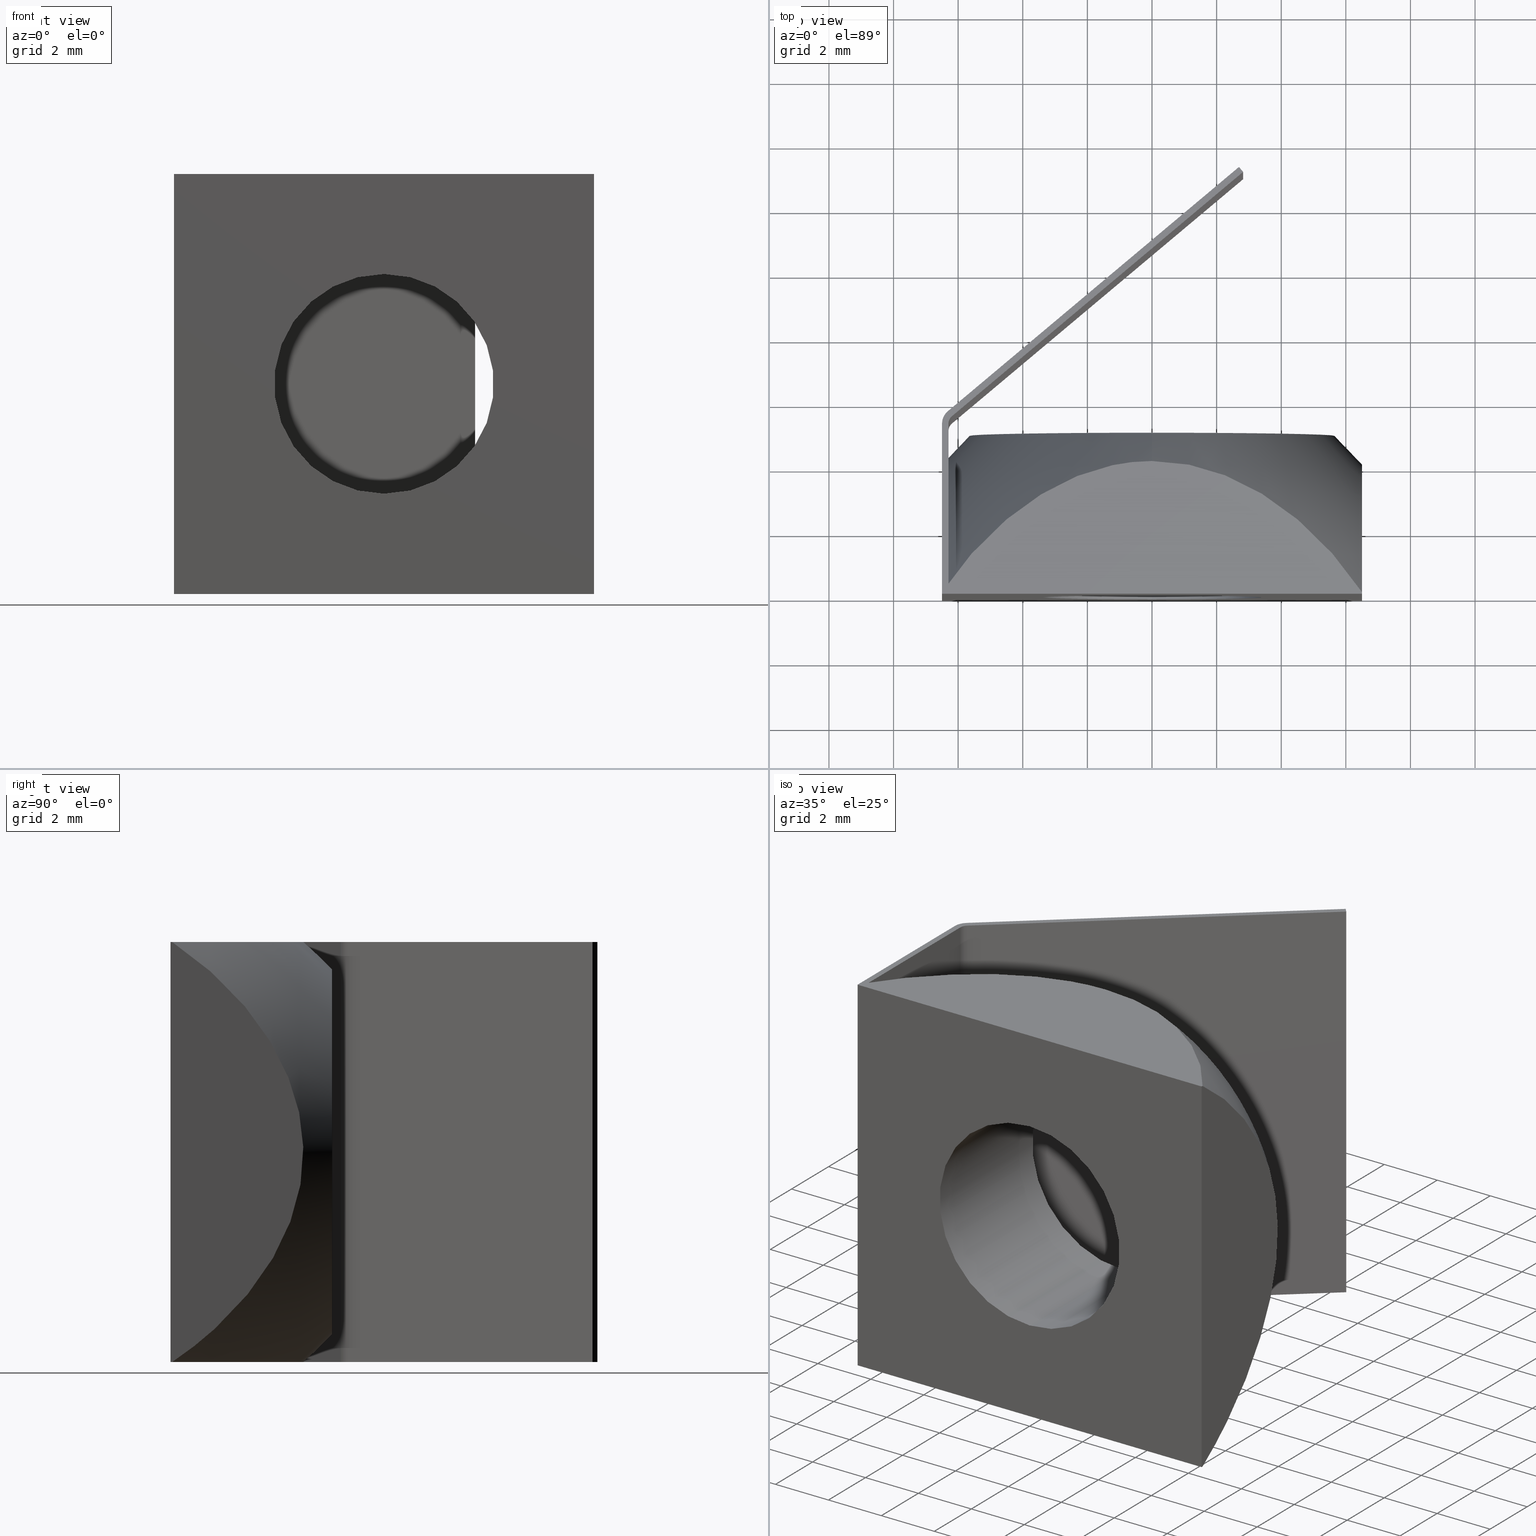
[diagram: canonical four-view strip — front | top / right | iso, engineering-drawing reading convention]
A machine part, canonical four-view strip (front | top / right | iso — engineering-drawing reading convention). The complete STEP part file that produces these views, byte-faithful:
ISO-10303-21;
HEADER;
FILE_DESCRIPTION (( 'STEP AP203' ),
    '1' );
FILE_NAME ('084.302.038.STEP',
    '2012-07-11T06:26:18',
    ( '' ),
    ( '' ),
    'SwSTEP 2.0',
    'SolidWorks 2011',
    '' );
FILE_SCHEMA (( 'CONFIG_CONTROL_DESIGN' ));
ENDSEC;

DATA;
#1 = PRODUCT ( '084.302.038', '084.302.038', '', ( #513 ) ) ;
#2 = EDGE_CURVE ( 'NONE', #271, #209, #282, .T. ) ;
#3 = EDGE_CURVE ( 'NONE', #226, #249, #223, .T. ) ;
#4 = EDGE_CURVE ( 'NONE', #421, #241, #659, .T. ) ;
#5 = EDGE_CURVE ( 'NONE', #312, #768, #111, .T. ) ;
#6 = EDGE_CURVE ( 'NONE', #222, #281, #162, .T. ) ;
#7 = EDGE_CURVE ( 'NONE', #209, #421, #366, .T. ) ;
#8 = EDGE_CURVE ( 'NONE', #229, #421, #443, .T. ) ;
#9 = EDGE_CURVE ( 'NONE', #241, #240, #717, .T. ) ;
#10 = EDGE_CURVE ( 'NONE', #688, #216, #626, .T. ) ;
#11 = EDGE_CURVE ( 'NONE', #491, #218, #500, .T. ) ;
#12 = EDGE_CURVE ( 'NONE', #688, #249, #323, .T. ) ;
#13 = EDGE_CURVE ( 'NONE', #229, #232, #100, .T. ) ;
#14 = EDGE_CURVE ( 'NONE', #483, #672, #165, .T. ) ;
#15 = EDGE_CURVE ( 'NONE', #232, #235, #103, .T. ) ;
#16 = EDGE_CURVE ( 'NONE', #264, #224, #415, .T. ) ;
#17 = EDGE_CURVE ( 'NONE', #281, #768, #743, .T. ) ;
#18 = EDGE_CURVE ( 'NONE', #271, #672, #101, .T. ) ;
#19 = EDGE_CURVE ( 'NONE', #688, #491, #192, .T. ) ;
#20 = EDGE_CURVE ( 'NONE', #597, #483, #153, .T. ) ;
#21 = EDGE_CURVE ( 'NONE', #289, #240, #551, .T. ) ;
#22 = EDGE_CURVE ( 'NONE', #216, #218, #205, .T. ) ;
#23 = EDGE_CURVE ( 'NONE', #222, #312, #615, .T. ) ;
#24 = EDGE_CURVE ( 'NONE', #273, #706, #349, .T. ) ;
#25 = EDGE_CURVE ( 'NONE', #218, #215, #498, .T. ) ;
#26 = EDGE_CURVE ( 'NONE', #768, #312, #163, .T. ) ;
#27 = EDGE_CURVE ( 'NONE', #242, #217, #439, .T. ) ;
#28 = EDGE_CURVE ( 'NONE', #249, #620, #707, .T. ) ;
#29 = EDGE_CURVE ( 'NONE', #218, #217, #557, .T. ) ;
#30 = EDGE_CURVE ( 'NONE', #597, #235, #167, .T. ) ;
#31 = EDGE_CURVE ( 'NONE', #620, #216, #662, .T. ) ;
#32 = EDGE_CURVE ( 'NONE', #224, #242, #337, .T. ) ;
#33 = EDGE_CURVE ( 'NONE', #235, #289, #102, .T. ) ;
#34 = EDGE_CURVE ( 'NONE', #237, #217, #259, .T. ) ;
#35 = EDGE_CURVE ( 'NONE', #620, #215, #188, .T. ) ;
#36 = EDGE_CURVE ( 'NONE', #491, #242, #573, .T. ) ;
#37 = EDGE_CURVE ( 'NONE', #215, #237, #651, .T. ) ;
#38 = EDGE_CURVE ( 'NONE', #483, #597, #193, .T. ) ;
#39 = EDGE_CURVE ( 'NONE', #273, #216, #335, .T. ) ;
#40 = EDGE_CURVE ( 'NONE', #240, #209, #479, .T. ) ;
#41 = EDGE_CURVE ( 'NONE', #232, #241, #213, .T. ) ;
#42 = EDGE_CURVE ( 'NONE', #672, #229, #99, .T. ) ;
#43 = EDGE_CURVE ( 'NONE', #766, #226, #594, .T. ) ;
#44 = EDGE_CURVE ( 'NONE', #249, #264, #173, .T. ) ;
#45 = EDGE_CURVE ( 'NONE', #264, #491, #675, .T. ) ;
#46 = EDGE_CURVE ( 'NONE', #766, #688, #611, .T. ) ;
#47 = EDGE_CURVE ( 'NONE', #281, #222, #155, .T. ) ;
#48 = EDGE_CURVE ( 'NONE', #289, #271, #98, .T. ) ;
#49 = PRODUCT_RELATED_PRODUCT_CATEGORY ( 'detail', '', ( #1 ) ) ;
#50 = MANIFOLD_SOLID_BREP ( 'Base-Flangia1', #112 ) ;
#51 = PRODUCT_DEFINITION_SHAPE ( 'NONE', 'NONE',  #73 ) ;
#52 = DESIGN_CONTEXT ( 'detailed design', #95, 'design' ) ;
#53 = UNCERTAINTY_MEASURE_WITH_UNIT (LENGTH_MEASURE( 1.000000000000000100E-005 ), #300, 'distance_accuracy_value', 'NONE');
#54 = MANIFOLD_SOLID_BREP ( 'Taglia-Rivoluzione2', #108 ) ;
#55 = EDGE_CURVE ( 'NONE', #224, #237, #507, .T. ) ;
#56 = EDGE_CURVE ( 'NONE', #264, #215, #577, .T. ) ;
#57 = ADVANCED_FACE ( 'NONE', ( #637, #450 ), #657, .T. ) ;
#58 = ADVANCED_FACE ( 'NONE', ( #755 ), #320, .T. ) ;
#59 = ADVANCED_FACE ( 'NONE', ( #283 ), #427, .F. ) ;
#60 = ADVANCED_FACE ( 'NONE', ( #746 ), #667, .T. ) ;
#61 = CC_DESIGN_DATE_AND_TIME_ASSIGNMENT ( #674, #471, ( #73 ) ) ;
#62 = ADVANCED_FACE ( 'NONE', ( #469 ), #728, .T. ) ;
#63 = EDGE_CURVE ( 'NONE', #766, #273, #619, .T. ) ;
#64 = ADVANCED_FACE ( 'NONE', ( #733 ), #206, .T. ) ;
#65 = CC_DESIGN_PERSON_AND_ORGANIZATION_ASSIGNMENT ( #501, #640, ( #73 ) ) ;
#66 = ADVANCED_FACE ( 'NONE', ( #506 ), #477, .T. ) ;
#67 = ADVANCED_FACE ( 'NONE', ( #481 ), #644, .F. ) ;
#68 = ADVANCED_FACE ( 'NONE', ( #660 ), #124, .T. ) ;
#69 = APPROVAL ( #759, 'NON SPECIFICATO' ) ;
#70 = ADVANCED_FACE ( 'NONE', ( #690 ), #390, .T. ) ;
#71 = ADVANCED_FACE ( 'NONE', ( #357 ), #778, .F. ) ;
#72 = APPROVAL ( #340, 'NON SPECIFICATO' ) ;
#73 = PRODUCT_DEFINITION ( 'NON CONOSCIUTO', '', #147, #52 ) ;
#74 = CC_DESIGN_PERSON_AND_ORGANIZATION_ASSIGNMENT ( #444, #613, ( #147 ) ) ;
#75 = ADVANCED_FACE ( 'NONE', ( #385 ), #558, .T. ) ;
#76 = ADVANCED_FACE ( 'NONE', ( #601 ), #377, .F. ) ;
#77 = ADVANCED_FACE ( 'NONE', ( #228, #669 ), #389, .F. ) ;
#78 = ADVANCED_FACE ( 'NONE', ( #634 ), #710, .T. ) ;
#79 = EDGE_CURVE ( 'NONE', #226, #706, #504, .T. ) ;
#80 = CC_DESIGN_PERSON_AND_ORGANIZATION_ASSIGNMENT ( #346, #621, ( #147 ) ) ;
#81 = CC_DESIGN_PERSON_AND_ORGANIZATION_ASSIGNMENT ( #333, #702, ( #202 ) ) ;
#82 = ADVANCED_FACE ( 'NONE', ( #517 ), #538, .F. ) ;
#83 = ADVANCED_FACE ( 'NONE', ( #704 ), #540, .T. ) ;
#84 = ADVANCED_FACE ( 'NONE', ( #737 ), #694, .F. ) ;
#85 = CC_DESIGN_PERSON_AND_ORGANIZATION_ASSIGNMENT ( #730, #556, ( #1 ) ) ;
#86 = ADVANCED_FACE ( 'NONE', ( #239 ), #546, .F. ) ;
#87 = EDGE_CURVE ( 'NONE', #706, #620, #548, .T. ) ;
#88 = ADVANCED_FACE ( 'NONE', ( #358 ), #543, .T. ) ;
#89 = ADVANCED_FACE ( 'NONE', ( #435 ), #523, .F. ) ;
#90 = ADVANCED_FACE ( 'NONE', ( #245 ), #555, .T. ) ;
#91 = APPROVAL ( #747, 'NON SPECIFICATO' ) ;
#92 = ADVANCED_FACE ( 'NONE', ( #518 ), #654, .F. ) ;
#93 = CC_DESIGN_DATE_AND_TIME_ASSIGNMENT ( #703, #631, ( #202 ) ) ;
#94 = ADVANCED_FACE ( 'NONE', ( #533 ), #402, .F. ) ;
#95 = APPLICATION_CONTEXT ( 'configuration controlled 3d designs of mechanical parts and assemblies' ) ;
#96 = APPLICATION_CONTEXT ( 'configuration controlled 3d designs of mechanical parts and assemblies' ) ;
#97 = ADVANCED_BREP_SHAPE_REPRESENTATION ( '084.302.038', ( #54, #50, #207 ), #197 ) ;
#98 = B_SPLINE_CURVE_WITH_KNOTS ( 'NONE', 3,
 ( #735, #423, #643, #650, #367, #800, #598, #600, #244, #243, #769, #356, #437, #705, #263, #584, #714, #225, #771, #270, #553, #537 ),
 .UNSPECIFIED., .F., .F.,
 ( 4, 2, 2, 2, 2, 2, 2, 2, 2, 2, 4 ),
 ( 0.05469827054856406900, 0.05668859883386818300, 0.05867892711917230300, 0.05967409126182435900, 0.06066925540447641600, 0.06265958368978052900, 0.06464991197508464200, 0.06664024026038875600, 0.06763540440304081900, 0.06863056854569286900, 0.07062089683099698200 ),
 .UNSPECIFIED. ) ;
#99 = B_SPLINE_CURVE_WITH_KNOTS ( 'NONE', 3,
 ( #363, #632, #525, #767, #596, #682, #524, #565, #795, #638, #451, #678 ),
 .UNSPECIFIED., .F., .F.,
 ( 4, 2, 2, 2, 2, 4 ),
 ( 7.740424289688171000E-019, 0.001990046668963452900, 0.003980093337926904900, 0.004975116672408631300, 0.005970140006890356000, 0.007960186675853809700 ),
 .UNSPECIFIED. ) ;
#100 = B_SPLINE_CURVE_WITH_KNOTS ( 'NONE', 3,
 ( #575, #476, #308, #393, #475, #407, #664, #493, #489, #560, #588, #554, #535, #365, #614, #467, #783, #304, #718, #593, #568, #731 ),
 .UNSPECIFIED., .F., .F.,
 ( 4, 2, 2, 2, 2, 2, 2, 2, 2, 2, 4 ),
 ( 0.05469827054856389600, 0.05668859883386803000, 0.05867892711917216400, 0.05967409126182423400, 0.06066925540447630500, 0.06265958368978043200, 0.06464991197508457300, 0.06664024026038870000, 0.06763540440304077700, 0.06863056854569284100, 0.07062089683099698200 ),
 .UNSPECIFIED. ) ;
#101 = B_SPLINE_CURVE_WITH_KNOTS ( 'NONE', 3,
 ( #484, #298, #541, #786, #776, #749, #777, #792, #412, #208, #463, #465 ),
 .UNSPECIFIED., .F., .F.,
 ( 4, 2, 2, 2, 2, 4 ),
 ( 0.05469827054856388200, 0.05668888045020870100, 0.05867949035185351900, 0.05967479530267592900, 0.06067010025349833800, 0.06266071015514315700 ),
 .UNSPECIFIED. ) ;
#102 = B_SPLINE_CURVE_WITH_KNOTS ( 'NONE', 3,
 ( #424, #348, #687, #585, #685, #332, #269, #266, #639, #628, #293, #211 ),
 .UNSPECIFIED., .F., .F.,
 ( 4, 2, 2, 2, 2, 4 ),
 ( 0.0000000000000000000, 0.001990046668963425500, 0.003980093337926851100, 0.004975116672408563600, 0.005970140006890277100, 0.007960186675853698700 ),
 .UNSPECIFIED. ) ;
#103 = B_SPLINE_CURVE_WITH_KNOTS ( 'NONE', 3,
 ( #701, #372, #276, #572, #671, #547, #440, #362, #552, #391, #582, #799 ),
 .UNSPECIFIED., .F., .F.,
 ( 4, 2, 2, 2, 2, 4 ),
 ( 0.05469827054856396500, 0.05668888045020877000, 0.05867949035185357500, 0.05967479530267597700, 0.06067010025349838000, 0.06266071015514318400 ),
 .UNSPECIFIED. ) ;
#104 = PERSON ( 'NON SPECIFICATO', 'NON SPECIFICATO', 'NON SPECIFICATO', ('NON SPECIFICATO'), ('NON SPECIFICATO'), ('NON SPECIFICATO') ) ;
#105 = AXIS2_PLACEMENT_3D ( 'NONE', #458, #457, #294 ) ;
#106 = ORGANIZATION ( 'NON SPECIFICATO', 'NON SPECIFICATO', '' ) ;
#107 = VECTOR ( 'NONE', #478, 1000.000000000000000 ) ;
#108 = CLOSED_SHELL ( 'NONE', ( #68, #82, #84, #67, #89, #71, #77, #57, #92, #64 ) ) ;
#109 = VECTOR ( 'NONE', #602, 1000.000000000000000 ) ;
#110 = AXIS2_PLACEMENT_3D ( 'NONE', #248, #683, #580 ) ;
#111 = CIRCLE ( 'NONE', #172, 3.399999999999999500 ) ;
#112 = CLOSED_SHELL ( 'NONE', ( #70, #60, #78, #66, #59, #58, #90, #75, #83, #88, #86, #76, #62, #94 ) ) ;
#113 = LOCAL_TIME ( 8, 26, 18.00000000000000000, #290 ) ;
#114 = VECTOR ( 'NONE', #233, 1000.000000000000000 ) ;
#115 = VECTOR ( 'NONE', #508, 1000.000000000000000 ) ;
#116 = AXIS2_PLACEMENT_3D ( 'NONE', #305, #221, #727 ) ;
#117 = APPROVAL_PERSON_ORGANIZATION ( #677, #91, #719 ) ;
#118 = VECTOR ( 'NONE', #311, 1000.000000000000000 ) ;
#119 = VECTOR ( 'NONE', #761, 1000.000000000000000 ) ;
#120 = VECTOR ( 'NONE', #510, 1000.000000000000000 ) ;
#121 = VECTOR ( 'NONE', #426, 1000.000000000000100 ) ;
#122 = CC_DESIGN_APPROVAL ( #69, ( #147 ) ) ;
#123 = VECTOR ( 'NONE', #793, 1000.000000000000000 ) ;
#124 = TOROIDAL_SURFACE ( 'NONE', #164, -6.174269187523332600, 17.00000000000000000 ) ;
#125 = LOCAL_TIME ( 8, 26, 18.00000000000000000, #752 ) ;
#126 = AXIS2_PLACEMENT_3D ( 'NONE', #542, #578, #591 ) ;
#127 = AXIS2_PLACEMENT_3D ( 'NONE', #400, #414, #432 ) ;
#128 = AXIS2_PLACEMENT_3D ( 'NONE', #796, #238, #673 ) ;
#129 = VECTOR ( 'NONE', #658, 1000.000000000000000 ) ;
#130 = VECTOR ( 'NONE', #608, 1000.000000000000000 ) ;
#131 = APPROVAL_PERSON_ORGANIZATION ( #486, #69, #698 ) ;
#132 = VECTOR ( 'NONE', #534, 1000.000000000000000 ) ;
#133 = AXIS2_PLACEMENT_3D ( 'NONE', #691, #590, #252 ) ;
#134 = AXIS2_PLACEMENT_3D ( 'NONE', #715, #499, #497 ) ;
#135 = AXIS2_PLACEMENT_3D ( 'NONE', #520, #234, #495 ) ;
#136 = VECTOR ( 'NONE', #711, 1000.000000000000100 ) ;
#137 = CC_DESIGN_SECURITY_CLASSIFICATION ( #202, ( #147 ) ) ;
#138 = VECTOR ( 'NONE', #655, 1000.000000000000000 ) ;
#139 = VECTOR ( 'NONE', #665, 1000.000000000000100 ) ;
#140 = AXIS2_PLACEMENT_3D ( 'NONE', #545, #214, #663 ) ;
#141 = AXIS2_PLACEMENT_3D ( 'NONE', #606, #789, #741 ) ;
#142 = AXIS2_PLACEMENT_3D ( 'NONE', #529, #278, #574 ) ;
#143 = AXIS2_PLACEMENT_3D ( 'NONE', #315, #247, #604 ) ;
#144 = AXIS2_PLACEMENT_3D ( 'NONE', #521, #633, #636 ) ;
#145 = VECTOR ( 'NONE', #699, 1000.000000000000000 ) ;
#146 = AXIS2_PLACEMENT_3D ( 'NONE', #342, #630, #652 ) ;
#147 = PRODUCT_DEFINITION_FORMATION_WITH_SPECIFIED_SOURCE ( 'TUTTO', '', #1, .NOT_KNOWN. ) ;
#148 = VECTOR ( 'NONE', #374, 1000.000000000000000 ) ;
#149 = APPROVAL_PERSON_ORGANIZATION ( #563, #72, #794 ) ;
#150 = AXIS2_PLACEMENT_3D ( 'NONE', #775, #539, #579 ) ;
#151 = VECTOR ( 'NONE', #722, 1000.000000000000000 ) ;
#152 = AXIS2_PLACEMENT_3D ( 'NONE', #466, #438, #779 ) ;
#153 = CIRCLE ( 'NONE', #144, 5.644004798131256000 ) ;
#154 = VECTOR ( 'NONE', #220, 1000.000000000000000 ) ;
#155 = CIRCLE ( 'NONE', #143, 3.399999999999999500 ) ;
#156 = AXIS2_PLACEMENT_3D ( 'NONE', #246, #576, #592 ) ;
#157 = VECTOR ( 'NONE', #299, 1000.000000000000000 ) ;
#158 = AXIS2_PLACEMENT_3D ( 'NONE', #382, #210, #236 ) ;
#159 = VECTOR ( 'NONE', #509, 1000.000000000000000 ) ;
#160 = LOCAL_TIME ( 8, 26, 18.00000000000000000, #744 ) ;
#161 = LOCAL_TIME ( 8, 26, 18.00000000000000000, #212 ) ;
#162 = CIRCLE ( 'NONE', #176, 3.399999999999999500 ) ;
#163 = CIRCLE ( 'NONE', #150, 3.399999999999999500 ) ;
#164 = AXIS2_PLACEMENT_3D ( 'NONE', #561, #599, #409 ) ;
#165 = CIRCLE ( 'NONE', #140, 17.00000000000000000 ) ;
#166 = VECTOR ( 'NONE', #530, 1000.000000000000100 ) ;
#167 = CIRCLE ( 'NONE', #110, 17.00000000000000000 ) ;
#168 = AXIS2_PLACEMENT_3D ( 'NONE', #617, #709, #684 ) ;
#169 = VECTOR ( 'NONE', #689, 1000.000000000000000 ) ;
#170 = AXIS2_PLACEMENT_3D ( 'NONE', #313, #405, #381 ) ;
#171 = LOCAL_TIME ( 8, 26, 18.00000000000000000, #661 ) ;
#172 = AXIS2_PLACEMENT_3D ( 'NONE', #567, #700, #536 ) ;
#173 = CIRCLE ( 'NONE', #195, 0.5000000000000004400 ) ;
#174 = AXIS2_PLACEMENT_3D ( 'NONE', #514, #394, #724 ) ;
#175 = VECTOR ( 'NONE', #307, 1000.000000000000000 ) ;
#176 = AXIS2_PLACEMENT_3D ( 'NONE', #712, #383, #603 ) ;
#177 = AXIS2_PLACEMENT_3D ( 'NONE', #739, #754, #447 ) ;
#178 = CC_DESIGN_APPROVAL ( #72, ( #73 ) ) ;
#179 = VECTOR ( 'NONE', #522, 1000.000000000000000 ) ;
#180 = VECTOR ( 'NONE', #765, 1000.000000000000000 ) ;
#181 = VECTOR ( 'NONE', #550, 1000.000000000000000 ) ;
#182 = AXIS2_PLACEMENT_3D ( 'NONE', #310, #764, #464 ) ;
#183 = AXIS2_PLACEMENT_3D ( 'NONE', #751, #583, #756 ) ;
#184 = AXIS2_PLACEMENT_3D ( 'NONE', #607, #532, #395 ) ;
#185 = VECTOR ( 'NONE', #623, 1000.000000000000000 ) ;
#186 = VECTOR ( 'NONE', #297, 1000.000000000000000 ) ;
#187 = AXIS2_PLACEMENT_3D ( 'NONE', #589, #373, #782 ) ;
#188 = CIRCLE ( 'NONE', #204, 0.5000000000000004400 ) ;
#189 = AXIS2_PLACEMENT_3D ( 'NONE', #763, #645, #647 ) ;
#190 = AXIS2_PLACEMENT_3D ( 'NONE', #292, #492, #624 ) ;
#191 = VECTOR ( 'NONE', #785, 1000.000000000000000 ) ;
#192 = CIRCLE ( 'NONE', #152, 0.2999999999999999300 ) ;
#193 = CIRCLE ( 'NONE', #174, 5.644004798131256000 ) ;
#194 = VECTOR ( 'NONE', #648, 1000.000000000000000 ) ;
#195 = AXIS2_PLACEMENT_3D ( 'NONE', #566, #757, #396 ) ;
#196 = AXIS2_PLACEMENT_3D ( 'NONE', #653, #760, #291 ) ;
#197 =( GEOMETRIC_REPRESENTATION_CONTEXT ( 3 ) GLOBAL_UNCERTAINTY_ASSIGNED_CONTEXT ( ( #53 ) ) GLOBAL_UNIT_ASSIGNED_CONTEXT ( ( #300, #797, #559 ) ) REPRESENTATION_CONTEXT ( 'NONE', 'WORKASPACE' ) );
#198 = CC_DESIGN_APPROVAL ( #91, ( #202 ) ) ;
#199 = VECTOR ( 'NONE', #774, 1000.000000000000000 ) ;
#200 = AXIS2_PLACEMENT_3D ( 'NONE', #787, #429, #494 ) ;
#201 = VECTOR ( 'NONE', #635, 1000.000000000000000 ) ;
#202 = SECURITY_CLASSIFICATION ( '', '', #610 ) ;
#203 = VECTOR ( 'NONE', #627, 1000.000000000000000 ) ;
#204 = AXIS2_PLACEMENT_3D ( 'NONE', #605, #656, #770 ) ;
#205 = CIRCLE ( 'NONE', #126, 0.2999999999999999300 ) ;
#206 = TOROIDAL_SURFACE ( 'NONE', #141, -6.174269187523332600, 17.00000000000000000 ) ;
#207 = AXIS2_PLACEMENT_3D ( 'NONE', #750, #791, #726 ) ;
#208 = CARTESIAN_POINT ( 'NONE',  ( -1.324089535981870500, 3.993502740051847200, 6.500000000000001800 ) ) ;
#209 = VERTEX_POINT ( 'NONE', #428 ) ;
#210 = DIRECTION ( 'NONE',  ( 1.000000000000000000, -0.0000000000000000000, 0.0000000000000000000 ) ) ;
#211 = CARTESIAN_POINT ( 'NONE',  ( -6.499999999999997300, 0.05089004898358535900, -6.499999999999999100 ) ) ;
#212 = COORDINATED_UNIVERSAL_TIME_OFFSET ( 1, 0, .AHEAD. ) ;
#213 = LINE ( 'NONE', #531, #179 ) ;
#214 = DIRECTION ( 'NONE',  ( 1.000000000000000000, 0.0000000000000000000, -1.224646799147353200E-016 ) ) ;
#215 = VERTEX_POINT ( 'NONE', #670 ) ;
#216 = VERTEX_POINT ( 'NONE', #679 ) ;
#217 = VERTEX_POINT ( 'NONE', #738 ) ;
#218 = VERTEX_POINT ( 'NONE', #716 ) ;
#219 = CARTESIAN_POINT ( 'NONE',  ( -6.300000000000000700, 0.0000000000000000000, 6.500000000000000000 ) ) ;
#220 = DIRECTION ( 'NONE',  ( 1.000000000000000000, 0.0000000000000000000, 0.0000000000000000000 ) ) ;
#221 = DIRECTION ( 'NONE',  ( -0.0000000000000000000, 1.000000000000000000, -0.0000000000000000000 ) ) ;
#222 = VERTEX_POINT ( 'NONE', #725 ) ;
#223 = LINE ( 'NONE', #758, #159 ) ;
#224 = VERTEX_POINT ( 'NONE', #586 ) ;
#225 = CARTESIAN_POINT ( 'NONE',  ( -6.500000000000000900, 2.063493455043966300, 4.786396139126116700 ) ) ;
#226 = VERTEX_POINT ( 'NONE', #334 ) ;
#227 = CARTESIAN_POINT ( 'NONE',  ( -6.300000000000000700, 0.0000000000000000000, 6.500000000000000000 ) ) ;
#228 = FACE_BOUND ( 'NONE', #753, .T. ) ;
#229 = VERTEX_POINT ( 'NONE', #403 ) ;
#230 = CARTESIAN_POINT ( 'NONE',  ( -6.500000000000000000, 5.000000000000000000, -6.499999999999999100 ) ) ;
#231 = CARTESIAN_POINT ( 'NONE',  ( -6.500000000000000900, 5.500000000000000000, -6.500000000000000000 ) ) ;
#232 = VERTEX_POINT ( 'NONE', #666 ) ;
#233 = DIRECTION ( 'NONE',  ( 0.0000000000000000000, 1.000000000000000000, 0.0000000000000000000 ) ) ;
#234 = DIRECTION ( 'NONE',  ( -1.000000000000000000, -0.0000000000000000000, 0.0000000000000000000 ) ) ;
#235 = VERTEX_POINT ( 'NONE', #748 ) ;
#236 = DIRECTION ( 'NONE',  ( 0.0000000000000000000, 0.0000000000000000000, -1.000000000000000000 ) ) ;
#237 = VERTEX_POINT ( 'NONE', #344 ) ;
#238 = DIRECTION ( 'NONE',  ( 0.0000000000000000000, 0.0000000000000000000, -1.000000000000000000 ) ) ;
#239 = FACE_OUTER_BOUND ( 'NONE', #352, .T. ) ;
#240 = VERTEX_POINT ( 'NONE', #723 ) ;
#241 = VERTEX_POINT ( 'NONE', #549 ) ;
#242 = VERTEX_POINT ( 'NONE', #581 ) ;
#243 = CARTESIAN_POINT ( 'NONE',  ( -6.500000000000000900, 3.993284070446364800, -1.324997778549733300 ) ) ;
#244 = CARTESIAN_POINT ( 'NONE',  ( -6.499999999999999100, 3.672803873449383100, -2.269417947575904600 ) ) ;
#245 = FACE_OUTER_BOUND ( 'NONE', #745, .T. ) ;
#246 = CARTESIAN_POINT ( 'NONE',  ( 6.500000000000000000, 5.000000000000000000, 6.500000000000000900 ) ) ;
#247 = DIRECTION ( 'NONE',  ( 0.0000000000000000000, -1.000000000000000000, 0.0000000000000000000 ) ) ;
#248 = CARTESIAN_POINT ( 'NONE',  ( 0.0000000000000000000, -7.220000000000002400, 6.174269187523332600 ) ) ;
#249 = VERTEX_POINT ( 'NONE', #642 ) ;
#250 = ORIENTED_EDGE ( 'NONE', *, *, #12, .F. ) ;
#251 = ORIENTED_EDGE ( 'NONE', *, *, #44, .F. ) ;
#252 = DIRECTION ( 'NONE',  ( 1.000000000000000000, 0.0000000000000000000, -0.0000000000000000000 ) ) ;
#253 = EDGE_LOOP ( 'NONE', ( #265, #261, #258, #257, #256, #255 ) ) ;
#254 = ORIENTED_EDGE ( 'NONE', *, *, #45, .F. ) ;
#255 = ORIENTED_EDGE ( 'NONE', *, *, #18, .T. ) ;
#256 = ORIENTED_EDGE ( 'NONE', *, *, #48, .T. ) ;
#257 = ORIENTED_EDGE ( 'NONE', *, *, #33, .T. ) ;
#258 = ORIENTED_EDGE ( 'NONE', *, *, #30, .T. ) ;
#259 = LINE ( 'NONE', #375, #199 ) ;
#260 = CARTESIAN_POINT ( 'NONE',  ( -6.300000000000000700, 0.0000000000000000000, 6.500000000000000000 ) ) ;
#261 = ORIENTED_EDGE ( 'NONE', *, *, #38, .T. ) ;
#262 = CARTESIAN_POINT ( 'NONE',  ( -6.299999999999999800, 5.266846170922499400, 6.500000000000000000 ) ) ;
#263 = CARTESIAN_POINT ( 'NONE',  ( -6.500000000000000000, 3.255705233841415000, 3.184796144167208400 ) ) ;
#264 = VERTEX_POINT ( 'NONE', #668 ) ;
#265 = ORIENTED_EDGE ( 'NONE', *, *, #14, .F. ) ;
#266 = CARTESIAN_POINT ( 'NONE',  ( -4.786672189913854700, 2.063239728859812800, -6.499999999999998200 ) ) ;
#267 = ORIENTED_EDGE ( 'NONE', *, *, #26, .T. ) ;
#268 = APPLICATION_PROTOCOL_DEFINITION ( 'international standard', 'config_control_design', 1994, #96 ) ;
#269 = CARTESIAN_POINT ( 'NONE',  ( -4.279733229958274000, 2.493680659320166800, -6.499999999999999100 ) ) ;
#270 = CARTESIAN_POINT ( 'NONE',  ( -6.500000000000002700, 1.123578473997164400, 5.715031706449941900 ) ) ;
#271 = VERTEX_POINT ( 'NONE', #417 ) ;
#272 = ORIENTED_EDGE ( 'NONE', *, *, #17, .T. ) ;
#273 = VERTEX_POINT ( 'NONE', #720 ) ;
#274 = ORIENTED_EDGE ( 'NONE', *, *, #6, .T. ) ;
#275 = ORIENTED_EDGE ( 'NONE', *, *, #23, .F. ) ;
#276 = CARTESIAN_POINT ( 'NONE',  ( 5.718393653599501500, 1.119872145102332100, -6.500000000000000000 ) ) ;
#277 = ORIENTED_EDGE ( 'NONE', *, *, #7, .F. ) ;
#278 = DIRECTION ( 'NONE',  ( -1.000000000000000000, 0.0000000000000000000, 0.0000000000000000000 ) ) ;
#279 = ORIENTED_EDGE ( 'NONE', *, *, #4, .F. ) ;
#280 = EDGE_LOOP ( 'NONE', ( #505, #516, #485, #480 ) ) ;
#281 = VERTEX_POINT ( 'NONE', #693 ) ;
#282 = LINE ( 'NONE', #564, #145 ) ;
#283 = FACE_OUTER_BOUND ( 'NONE', #612, .T. ) ;
#284 = CARTESIAN_POINT ( 'NONE',  ( -6.192836282905961600, 5.496659503858192700, 6.500000000000000000 ) ) ;
#285 = ORIENTED_EDGE ( 'NONE', *, *, #9, .F. ) ;
#286 = ORIENTED_EDGE ( 'NONE', *, *, #40, .F. ) ;
#287 = ORIENTED_EDGE ( 'NONE', *, *, #6, .F. ) ;
#288 = ORIENTED_EDGE ( 'NONE', *, *, #47, .F. ) ;
#289 = VERTEX_POINT ( 'NONE', #729 ) ;
#290 = COORDINATED_UNIVERSAL_TIME_OFFSET ( 1, 0, .AHEAD. ) ;
#291 = DIRECTION ( 'NONE',  ( 1.000000000000000000, 0.0000000000000000000, -0.0000000000000000000 ) ) ;
#292 = CARTESIAN_POINT ( 'NONE',  ( -6.299999999999999800, 5.266846170922499400, 6.500000000000000000 ) ) ;
#293 = CARTESIAN_POINT ( 'NONE',  ( -6.128323188261311400, 0.6063366316386016300, -6.500000000000000900 ) ) ;
#294 = DIRECTION ( 'NONE',  ( -0.6427876096865411400, 0.7660444431189765700, 0.0000000000000000000 ) ) ;
#295 = ORIENTED_EDGE ( 'NONE', *, *, #38, .F. ) ;
#296 = EDGE_LOOP ( 'NONE', ( #473, #472, #470, #462 ) ) ;
#297 = DIRECTION ( 'NONE',  ( -0.0000000000000000000, -1.000000000000000000, -0.0000000000000000000 ) ) ;
#298 = CARTESIAN_POINT ( 'NONE',  ( -6.130557881894620000, 0.6029970287828481100, 6.500000000000000000 ) ) ;
#299 = DIRECTION ( 'NONE',  ( 0.6427876096865410300, -0.7660444431189765700, 0.0000000000000000000 ) ) ;
#300 =( LENGTH_UNIT ( ) NAMED_UNIT ( * ) SI_UNIT ( .MILLI., .METRE. ) );
#301 = ORIENTED_EDGE ( 'NONE', *, *, #20, .F. ) ;
#302 = ORIENTED_EDGE ( 'NONE', *, *, #5, .F. ) ;
#303 = ORIENTED_EDGE ( 'NONE', *, *, #26, .F. ) ;
#304 = CARTESIAN_POINT ( 'NONE',  ( 6.500000000000000000, 2.063493455043995200, -4.786396139126090100 ) ) ;
#305 = CARTESIAN_POINT ( 'NONE',  ( 0.0000000000000000000, 5.000000000000000000, 0.0000000000000000000 ) ) ;
#306 = ORIENTED_EDGE ( 'NONE', *, *, #33, .F. ) ;
#307 = DIRECTION ( 'NONE',  ( -1.000000000000000000, -0.0000000000000000000, -0.0000000000000000000 ) ) ;
#308 = CARTESIAN_POINT ( 'NONE',  ( 6.500000000000000900, 1.119725732539727000, 5.718510072696611600 ) ) ;
#309 = ORIENTED_EDGE ( 'NONE', *, *, #21, .F. ) ;
#310 = CARTESIAN_POINT ( 'NONE',  ( -6.000000000000000000, 5.266846170922499400, 6.500000000000000000 ) ) ;
#311 = DIRECTION ( 'NONE',  ( -1.000000000000000000, 0.0000000000000000000, 0.0000000000000000000 ) ) ;
#312 = VERTEX_POINT ( 'NONE', #562 ) ;
#313 = CARTESIAN_POINT ( 'NONE',  ( 0.0000000000000000000, 5.000000000000000000, 0.0000000000000000000 ) ) ;
#314 = ORIENTED_EDGE ( 'NONE', *, *, #9, .T. ) ;
#315 = CARTESIAN_POINT ( 'NONE',  ( 0.0000000000000000000, 0.0000000000000000000, 0.0000000000000000000 ) ) ;
#316 = ORIENTED_EDGE ( 'NONE', *, *, #41, .T. ) ;
#317 = ORIENTED_EDGE ( 'NONE', *, *, #15, .F. ) ;
#318 = SHAPE_DEFINITION_REPRESENTATION ( #51, #97 ) ;
#319 = ORIENTED_EDGE ( 'NONE', *, *, #41, .F. ) ;
#320 = PLANE ( 'NONE',  #105 ) ;
#321 = CARTESIAN_POINT ( 'NONE',  ( -6.500000000000000000, 0.0000000000000000000, 6.500000000000000900 ) ) ;
#322 = ORIENTED_EDGE ( 'NONE', *, *, #4, .T. ) ;
#323 = LINE ( 'NONE', #413, #107 ) ;
#324 = ORIENTED_EDGE ( 'NONE', *, *, #8, .T. ) ;
#325 = ORIENTED_EDGE ( 'NONE', *, *, #13, .F. ) ;
#326 = ORIENTED_EDGE ( 'NONE', *, *, #42, .F. ) ;
#327 = ORIENTED_EDGE ( 'NONE', *, *, #8, .F. ) ;
#328 = ORIENTED_EDGE ( 'NONE', *, *, #7, .T. ) ;
#329 = ORIENTED_EDGE ( 'NONE', *, *, #2, .T. ) ;
#330 = ORIENTED_EDGE ( 'NONE', *, *, #18, .F. ) ;
#331 = ORIENTED_EDGE ( 'NONE', *, *, #2, .F. ) ;
#332 = CARTESIAN_POINT ( 'NONE',  ( -4.012227267387062000, 2.697749916528825200, -6.500000000000000000 ) ) ;
#333 = PERSON_AND_ORGANIZATION ( #104, #106 ) ;
#334 = CARTESIAN_POINT ( 'NONE',  ( -6.500000000000000900, 0.0000000000000000000, 6.500000000000000000 ) ) ;
#335 = LINE ( 'NONE', #697, #185 ) ;
#336 = ORIENTED_EDGE ( 'NONE', *, *, #40, .T. ) ;
#337 = LINE ( 'NONE', #784, #157 ) ;
#338 = ORIENTED_EDGE ( 'NONE', *, *, #21, .T. ) ;
#339 = ORIENTED_EDGE ( 'NONE', *, *, #48, .F. ) ;
#340 = APPROVAL_STATUS ( 'not_yet_approved' ) ;
#341 = ORIENTED_EDGE ( 'NONE', *, *, #17, .F. ) ;
#342 = CARTESIAN_POINT ( 'NONE',  ( -6.500000000000000000, 5.000000000000000000, -6.499999999999999100 ) ) ;
#343 = ORIENTED_EDGE ( 'NONE', *, *, #5, .T. ) ;
#344 = CARTESIAN_POINT ( 'NONE',  ( 2.692533317427751300, 13.21345131623845500, -6.500000000000000000 ) ) ;
#345 = ORIENTED_EDGE ( 'NONE', *, *, #23, .T. ) ;
#346 = PERSON_AND_ORGANIZATION ( #104, #106 ) ;
#347 = ORIENTED_EDGE ( 'NONE', *, *, #47, .T. ) ;
#348 = CARTESIAN_POINT ( 'NONE',  ( -0.6727004638865354800, 4.109735237956653200, -6.500000000000001800 ) ) ;
#349 = LINE ( 'NONE', #721, #118 ) ;
#350 = ORIENTED_EDGE ( 'NONE', *, *, #30, .F. ) ;
#351 = ORIENTED_EDGE ( 'NONE', *, *, #15, .T. ) ;
#352 = EDGE_LOOP ( 'NONE', ( #406, #404, #401, #399 ) ) ;
#353 = ORIENTED_EDGE ( 'NONE', *, *, #13, .T. ) ;
#354 = ORIENTED_EDGE ( 'NONE', *, *, #42, .T. ) ;
#355 = CALENDAR_DATE ( 2012, 11, 7 ) ;
#356 = CARTESIAN_POINT ( 'NONE',  ( -6.499999999999999100, 4.109867876356189800, 0.6728596580752527200 ) ) ;
#357 = FACE_OUTER_BOUND ( 'NONE', #736, .T. ) ;
#358 = FACE_OUTER_BOUND ( 'NONE', #695, .T. ) ;
#359 = ORIENTED_EDGE ( 'NONE', *, *, #20, .T. ) ;
#360 = ORIENTED_EDGE ( 'NONE', *, *, #14, .T. ) ;
#361 = ORIENTED_EDGE ( 'NONE', *, *, #34, .T. ) ;
#362 = CARTESIAN_POINT ( 'NONE',  ( 2.579949745945124800, 3.540641047558085400, -6.500000000000000900 ) ) ;
#363 = CARTESIAN_POINT ( 'NONE',  ( 7.960204194457799400E-016, 4.109735237956652300, 6.500000000000000900 ) ) ;
#364 = ORIENTED_EDGE ( 'NONE', *, *, #37, .T. ) ;
#365 = CARTESIAN_POINT ( 'NONE',  ( 6.500000000000000000, 3.560839629399143100, -2.597151962111099400 ) ) ;
#366 = LINE ( 'NONE', #625, #154 ) ;
#367 = CARTESIAN_POINT ( 'NONE',  ( -6.500000000000000000, 2.513996523866434400, -4.284981449289193600 ) ) ;
#368 = ORIENTED_EDGE ( 'NONE', *, *, #25, .T. ) ;
#369 = ORIENTED_EDGE ( 'NONE', *, *, #29, .F. ) ;
#370 = EDGE_LOOP ( 'NONE', ( #430, #425, #422, #420 ) ) ;
#371 = ORIENTED_EDGE ( 'NONE', *, *, #19, .T. ) ;
#372 = CARTESIAN_POINT ( 'NONE',  ( 6.130557881894588900, 0.6029970287828965200, -6.500000000000000900 ) ) ;
#373 = DIRECTION ( 'NONE',  ( 0.0000000000000000000, 0.0000000000000000000, 1.000000000000000000 ) ) ;
#374 = DIRECTION ( 'NONE',  ( -0.0000000000000000000, -0.0000000000000000000, -1.000000000000000000 ) ) ;
#375 = CARTESIAN_POINT ( 'NONE',  ( 2.692533317427751300, 13.21345131623845500, -6.500000000000000000 ) ) ;
#376 = CARTESIAN_POINT ( 'NONE',  ( 0.0000000000000000000, 5.000000000000000000, 3.399999999999999500 ) ) ;
#377 = CYLINDRICAL_SURFACE ( 'NONE', #182, 0.2999999999999999300 ) ;
#378 = ORIENTED_EDGE ( 'NONE', *, *, #43, .F. ) ;
#379 = ORIENTED_EDGE ( 'NONE', *, *, #3, .F. ) ;
#380 = ORIENTED_EDGE ( 'NONE', *, *, #12, .T. ) ;
#381 = DIRECTION ( 'NONE',  ( 0.0000000000000000000, 0.0000000000000000000, 1.000000000000000000 ) ) ;
#382 = CARTESIAN_POINT ( 'NONE',  ( -6.500000000000000000, 5.000000000000000000, 6.500000000000000900 ) ) ;
#383 = DIRECTION ( 'NONE',  ( 0.0000000000000000000, -1.000000000000000000, 0.0000000000000000000 ) ) ;
#384 = ORIENTED_EDGE ( 'NONE', *, *, #46, .T. ) ;
#385 = FACE_OUTER_BOUND ( 'NONE', #641, .T. ) ;
#386 = CARTESIAN_POINT ( 'NONE',  ( -6.500000000000000900, 5.500000000000000000, 6.500000000000000000 ) ) ;
#387 = ORIENTED_EDGE ( 'NONE', *, *, #10, .T. ) ;
#388 = ORIENTED_EDGE ( 'NONE', *, *, #19, .F. ) ;
#389 = PLANE ( 'NONE',  #146 ) ;
#390 = PLANE ( 'NONE',  #133 ) ;
#391 = CARTESIAN_POINT ( 'NONE',  ( 1.324089535981858300, 3.993502740051849000, -6.500000000000001800 ) ) ;
#392 = APPROVAL_DATE_TIME ( #570, #69 ) ;
#393 = CARTESIAN_POINT ( 'NONE',  ( 6.500000000000000900, 2.074011848386387900, 4.798117493915518700 ) ) ;
#394 = DIRECTION ( 'NONE',  ( 0.0000000000000000000, -1.000000000000000000, 0.0000000000000000000 ) ) ;
#395 = DIRECTION ( 'NONE',  ( 0.0000000000000000000, -0.0000000000000000000, -1.000000000000000000 ) ) ;
#396 = DIRECTION ( 'NONE',  ( 1.000000000000000000, 0.0000000000000000000, 0.0000000000000000000 ) ) ;
#397 = ORIENTED_EDGE ( 'NONE', *, *, #11, .F. ) ;
#398 = ORIENTED_EDGE ( 'NONE', *, *, #22, .T. ) ;
#399 = ORIENTED_EDGE ( 'NONE', *, *, #63, .T. ) ;
#400 = CARTESIAN_POINT ( 'NONE',  ( -6.371442478062693500, 5.346791111376203900, 6.500000000000000000 ) ) ;
#401 = ORIENTED_EDGE ( 'NONE', *, *, #46, .F. ) ;
#402 = PLANE ( 'NONE',  #187 ) ;
#403 = CARTESIAN_POINT ( 'NONE',  ( 6.500000000000000000, 0.05089004898344110000, 6.500000000000096800 ) ) ;
#404 = ORIENTED_EDGE ( 'NONE', *, *, #10, .F. ) ;
#405 = DIRECTION ( 'NONE',  ( -0.0000000000000000000, 1.000000000000000000, -0.0000000000000000000 ) ) ;
#406 = ORIENTED_EDGE ( 'NONE', *, *, #39, .T. ) ;
#407 = CARTESIAN_POINT ( 'NONE',  ( 6.500000000000000000, 3.070129253417008800, 3.459911975005473200 ) ) ;
#408 = ORIENTED_EDGE ( 'NONE', *, *, #79, .T. ) ;
#409 = DIRECTION ( 'NONE',  ( 0.0000000000000000000, 0.0000000000000000000, -1.000000000000000000 ) ) ;
#410 = ORIENTED_EDGE ( 'NONE', *, *, #43, .T. ) ;
#411 = ORIENTED_EDGE ( 'NONE', *, *, #63, .F. ) ;
#412 = CARTESIAN_POINT ( 'NONE',  ( -2.268669397716684100, 3.673102568464421000, 6.500000000000000000 ) ) ;
#413 = CARTESIAN_POINT ( 'NONE',  ( -6.299999999999999800, 5.266846170922499400, 6.500000000000000000 ) ) ;
#414 = DIRECTION ( 'NONE',  ( -0.6427876096865379200, 0.7660444431189792300, 0.0000000000000000000 ) ) ;
#415 = LINE ( 'NONE', #386, #136 ) ;
#416 = CARTESIAN_POINT ( 'NONE',  ( 6.500000000000000000, 0.0000000000000000000, 6.500000000000000900 ) ) ;
#417 = CARTESIAN_POINT ( 'NONE',  ( -6.500000000000093300, 0.05089004898344541600, 6.500000000000000900 ) ) ;
#418 = ORIENTED_EDGE ( 'NONE', *, *, #24, .F. ) ;
#419 = CARTESIAN_POINT ( 'NONE',  ( 2.692533317427751300, 13.21345131623845500, 6.500000000000000000 ) ) ;
#420 = ORIENTED_EDGE ( 'NONE', *, *, #28, .T. ) ;
#421 = VERTEX_POINT ( 'NONE', #742 ) ;
#422 = ORIENTED_EDGE ( 'NONE', *, *, #3, .T. ) ;
#423 = CARTESIAN_POINT ( 'NONE',  ( -6.500000000000001800, 0.6029189208889170800, -6.130610147754007100 ) ) ;
#424 = CARTESIAN_POINT ( 'NONE',  ( 0.0000000000000000000, 4.109735237956652300, -6.499999999999999100 ) ) ;
#425 = ORIENTED_EDGE ( 'NONE', *, *, #79, .F. ) ;
#426 = DIRECTION ( 'NONE',  ( 0.7660444431189792300, 0.6427876096865379200, 0.0000000000000000000 ) ) ;
#427 = PLANE ( 'NONE',  #127 ) ;
#428 = CARTESIAN_POINT ( 'NONE',  ( -6.500000000000000000, 0.0000000000000000000, 6.500000000000000900 ) ) ;
#429 = DIRECTION ( 'NONE',  ( -0.0000000000000000000, 0.0000000000000000000, -1.000000000000000000 ) ) ;
#430 = ORIENTED_EDGE ( 'NONE', *, *, #87, .F. ) ;
#431 = ORIENTED_EDGE ( 'NONE', *, *, #56, .T. ) ;
#432 = DIRECTION ( 'NONE',  ( -0.7660444431189792300, -0.6427876096865379200, 0.0000000000000000000 ) ) ;
#433 = ORIENTED_EDGE ( 'NONE', *, *, #44, .T. ) ;
#434 = ORIENTED_EDGE ( 'NONE', *, *, #28, .F. ) ;
#435 = FACE_OUTER_BOUND ( 'NONE', #622, .T. ) ;
#436 = ORIENTED_EDGE ( 'NONE', *, *, #35, .F. ) ;
#437 = CARTESIAN_POINT ( 'NONE',  ( -6.500000000000000900, 3.993916635667155400, 1.325323139714466000 ) ) ;
#438 = DIRECTION ( 'NONE',  ( -0.0000000000000000000, -0.0000000000000000000, -1.000000000000000000 ) ) ;
#439 = LINE ( 'NONE', #616, #129 ) ;
#440 = CARTESIAN_POINT ( 'NONE',  ( 3.174080856937301100, 3.239602677233732700, -6.499999999999999100 ) ) ;
#441 = ORIENTED_EDGE ( 'NONE', *, *, #55, .T. ) ;
#442 = ORIENTED_EDGE ( 'NONE', *, *, #16, .T. ) ;
#443 = LINE ( 'NONE', #468, #186 ) ;
#444 = PERSON_AND_ORGANIZATION ( #104, #106 ) ;
#445 = ORIENTED_EDGE ( 'NONE', *, *, #56, .F. ) ;
#446 = ORIENTED_EDGE ( 'NONE', *, *, #37, .F. ) ;
#447 = DIRECTION ( 'NONE',  ( 1.000000000000000000, 0.0000000000000000000, -0.0000000000000000000 ) ) ;
#448 = ORIENTED_EDGE ( 'NONE', *, *, #27, .T. ) ;
#449 = EDGE_LOOP ( 'NONE', ( #254, #251, #250, #371 ) ) ;
#450 = FACE_OUTER_BOUND ( 'NONE', #629, .T. ) ;
#451 = CARTESIAN_POINT ( 'NONE',  ( 6.128323188261370000, 0.6063366316385198100, 6.499999999999999100 ) ) ;
#452 = EDGE_LOOP ( 'NONE', ( #398, #397, #388, #387 ) ) ;
#453 = ORIENTED_EDGE ( 'NONE', *, *, #32, .T. ) ;
#454 = ORIENTED_EDGE ( 'NONE', *, *, #55, .F. ) ;
#455 = ORIENTED_EDGE ( 'NONE', *, *, #34, .F. ) ;
#456 = ORIENTED_EDGE ( 'NONE', *, *, #11, .T. ) ;
#457 = DIRECTION ( 'NONE',  ( 0.7660444431189765700, 0.6427876096865411400, -0.0000000000000000000 ) ) ;
#458 = CARTESIAN_POINT ( 'NONE',  ( 2.692533317427751300, 13.21345131623845500, 6.500000000000000000 ) ) ;
#459 = ORIENTED_EDGE ( 'NONE', *, *, #36, .F. ) ;
#460 = ORIENTED_EDGE ( 'NONE', *, *, #27, .F. ) ;
#461 = ORIENTED_EDGE ( 'NONE', *, *, #29, .T. ) ;
#462 = ORIENTED_EDGE ( 'NONE', *, *, #24, .T. ) ;
#463 = CARTESIAN_POINT ( 'NONE',  ( -0.6728908548416628900, 4.109735237956652300, 6.500000000000000900 ) ) ;
#464 = DIRECTION ( 'NONE',  ( -1.000000000000000000, 0.0000000000000000000, 0.0000000000000000000 ) ) ;
#465 = CARTESIAN_POINT ( 'NONE',  ( 7.960204194457799400E-016, 4.109735237956652300, 6.500000000000000900 ) ) ;
#466 = CARTESIAN_POINT ( 'NONE',  ( -6.000000000000000000, 5.266846170922499400, 6.500000000000000000 ) ) ;
#467 = CARTESIAN_POINT ( 'NONE',  ( 6.500000000000000000, 2.698058606819216700, -4.011808767700928000 ) ) ;
#468 = CARTESIAN_POINT ( 'NONE',  ( 6.500000000000000000, 5.000000000000000000, 6.500000000000000900 ) ) ;
#469 = FACE_OUTER_BOUND ( 'NONE', #680, .T. ) ;
#470 = ORIENTED_EDGE ( 'NONE', *, *, #39, .F. ) ;
#471 = DATE_TIME_ROLE ( 'creation_date' ) ;
#472 = ORIENTED_EDGE ( 'NONE', *, *, #31, .T. ) ;
#473 = ORIENTED_EDGE ( 'NONE', *, *, #87, .T. ) ;
#474 = CARTESIAN_POINT ( 'NONE',  ( -6.321393804843269000, 5.649868392481989700, 6.500000000000000000 ) ) ;
#475 = CARTESIAN_POINT ( 'NONE',  ( 6.500000000000001800, 2.513996523866347800, 4.284981449289306400 ) ) ;
#476 = CARTESIAN_POINT ( 'NONE',  ( 6.500000000000001800, 0.6029189208887844000, 6.130610147754108400 ) ) ;
#477 = PLANE ( 'NONE',  #183 ) ;
#478 = DIRECTION ( 'NONE',  ( -1.000000000000000000, 0.0000000000000000000, 0.0000000000000000000 ) ) ;
#479 = LINE ( 'NONE', #321, #181 ) ;
#480 = ORIENTED_EDGE ( 'NONE', *, *, #22, .F. ) ;
#481 = FACE_OUTER_BOUND ( 'NONE', #781, .T. ) ;
#482 = APPLICATION_PROTOCOL_DEFINITION ( 'international standard', 'config_control_design', 1994, #95 ) ;
#483 = VERTEX_POINT ( 'NONE', #734 ) ;
#484 = CARTESIAN_POINT ( 'NONE',  ( -6.500000000000093300, 0.05089004898344541600, 6.500000000000000900 ) ) ;
#485 = ORIENTED_EDGE ( 'NONE', *, *, #25, .F. ) ;
#486 = PERSON_AND_ORGANIZATION ( #104, #106 ) ;
#487 = APPROVAL_DATE_TIME ( #676, #72 ) ;
#488 = ORIENTED_EDGE ( 'NONE', *, *, #32, .F. ) ;
#489 = CARTESIAN_POINT ( 'NONE',  ( 6.500000000000003600, 3.672803873449343100, 2.269417947576013900 ) ) ;
#490 = ORIENTED_EDGE ( 'NONE', *, *, #36, .T. ) ;
#491 = VERTEX_POINT ( 'NONE', #284 ) ;
#492 = DIRECTION ( 'NONE',  ( 0.0000000000000000000, 0.0000000000000000000, 1.000000000000000000 ) ) ;
#493 = CARTESIAN_POINT ( 'NONE',  ( 6.500000000000001800, 3.540326829205433500, 2.580638880078240500 ) ) ;
#494 = DIRECTION ( 'NONE',  ( -1.000000000000000000, 0.0000000000000000000, 0.0000000000000000000 ) ) ;
#495 = DIRECTION ( 'NONE',  ( 0.0000000000000000000, 0.0000000000000000000, 1.000000000000000000 ) ) ;
#496 = CARTESIAN_POINT ( 'NONE',  ( -6.500000000000000900, 0.0000000000000000000, -6.500000000000000000 ) ) ;
#497 = DIRECTION ( 'NONE',  ( 0.0000000000000000000, -0.0000000000000000000, -1.000000000000000000 ) ) ;
#498 = LINE ( 'NONE', #713, #115 ) ;
#499 = DIRECTION ( 'NONE',  ( 0.0000000000000000000, -1.000000000000000000, 0.0000000000000000000 ) ) ;
#500 = LINE ( 'NONE', #790, #138 ) ;
#501 = PERSON_AND_ORGANIZATION ( #104, #106 ) ;
#502 = EDGE_LOOP ( 'NONE', ( #301, #295 ) ) ;
#503 = ORIENTED_EDGE ( 'NONE', *, *, #16, .F. ) ;
#504 = LINE ( 'NONE', #762, #132 ) ;
#505 = ORIENTED_EDGE ( 'NONE', *, *, #31, .F. ) ;
#506 = FACE_OUTER_BOUND ( 'NONE', #296, .T. ) ;
#507 = LINE ( 'NONE', #419, #123 ) ;
#508 = DIRECTION ( 'NONE',  ( -0.6427876096865359200, 0.7660444431189809000, 0.0000000000000000000 ) ) ;
#509 = DIRECTION ( 'NONE',  ( 0.0000000000000000000, 1.000000000000000000, 0.0000000000000000000 ) ) ;
#510 = DIRECTION ( 'NONE',  ( -0.0000000000000000000, 1.000000000000000000, -0.0000000000000000000 ) ) ;
#511 = ORIENTED_EDGE ( 'NONE', *, *, #45, .T. ) ;
#512 = CARTESIAN_POINT ( 'NONE',  ( 4.163799117101000100E-016, 5.000000000000000000, -3.399999999999999500 ) ) ;
#513 = MECHANICAL_CONTEXT ( 'NONE', #96, 'mechanical' ) ;
#514 = CARTESIAN_POINT ( 'NONE',  ( 0.0000000000000000000, 4.999999999999999100, 0.0000000000000000000 ) ) ;
#515 = EDGE_LOOP ( 'NONE', ( #339, #338, #336, #331 ) ) ;
#516 = ORIENTED_EDGE ( 'NONE', *, *, #35, .T. ) ;
#517 = FACE_OUTER_BOUND ( 'NONE', #587, .T. ) ;
#518 = FACE_OUTER_BOUND ( 'NONE', #609, .T. ) ;
#519 = CARTESIAN_POINT ( 'NONE',  ( -6.500000000000000900, 5.266846170922499400, -6.500000000000000000 ) ) ;
#520 = CARTESIAN_POINT ( 'NONE',  ( -6.300000000000000700, 0.0000000000000000000, 6.500000000000000000 ) ) ;
#521 = CARTESIAN_POINT ( 'NONE',  ( 0.0000000000000000000, 4.999999999999999100, 0.0000000000000000000 ) ) ;
#522 = DIRECTION ( 'NONE',  ( -0.0000000000000000000, -1.000000000000000000, -0.0000000000000000000 ) ) ;
#523 = PLANE ( 'NONE',  #156 ) ;
#524 = CARTESIAN_POINT ( 'NONE',  ( 4.279733229958324600, 2.493680659320124600, 6.500000000000000000 ) ) ;
#525 = CARTESIAN_POINT ( 'NONE',  ( 1.326264826254138100, 3.993687183243997300, 6.500000000000001800 ) ) ;
#526 = CARTESIAN_POINT ( 'NONE',  ( -6.371442478062693500, 5.346791111376203900, -6.500000000000000000 ) ) ;
#527 = EDGE_LOOP ( 'NONE', ( #359, #360, #354, #353, #351, #350 ) ) ;
#528 = CALENDAR_DATE ( 2012, 11, 7 ) ;
#529 = CARTESIAN_POINT ( 'NONE',  ( -6.500000000000000900, 0.0000000000000000000, 6.500000000000000000 ) ) ;
#530 = DIRECTION ( 'NONE',  ( 0.7660444431189792300, 0.6427876096865379200, 0.0000000000000000000 ) ) ;
#531 = CARTESIAN_POINT ( 'NONE',  ( 6.500000000000000000, 5.000000000000000000, -6.499999999999999100 ) ) ;
#532 = DIRECTION ( 'NONE',  ( 0.0000000000000000000, -1.000000000000000000, 0.0000000000000000000 ) ) ;
#533 = FACE_OUTER_BOUND ( 'NONE', #801, .T. ) ;
#534 = DIRECTION ( 'NONE',  ( -0.0000000000000000000, -0.0000000000000000000, -1.000000000000000000 ) ) ;
#535 = CARTESIAN_POINT ( 'NONE',  ( 6.500000000000000900, 3.993916635667172700, -1.325323139714399000 ) ) ;
#536 = DIRECTION ( 'NONE',  ( 0.0000000000000000000, 0.0000000000000000000, 1.000000000000000000 ) ) ;
#537 = CARTESIAN_POINT ( 'NONE',  ( -6.500000000000093300, 0.05089004898344541600, 6.500000000000000900 ) ) ;
#538 = CYLINDRICAL_SURFACE ( 'NONE', #170, 3.399999999999999500 ) ;
#539 = DIRECTION ( 'NONE',  ( -0.0000000000000000000, 1.000000000000000000, -0.0000000000000000000 ) ) ;
#540 = PLANE ( 'NONE',  #142 ) ;
#541 = CARTESIAN_POINT ( 'NONE',  ( -5.718393653599532600, 1.119872145102291300, 6.500000000000001800 ) ) ;
#542 = CARTESIAN_POINT ( 'NONE',  ( -6.000000000000000000, 5.266846170922499400, -6.500000000000000000 ) ) ;
#543 = PLANE ( 'NONE',  #134 ) ;
#544 = CARTESIAN_POINT ( 'NONE',  ( -6.299999999999999800, 5.266846170922499400, 6.500000000000000000 ) ) ;
#545 = CARTESIAN_POINT ( 'NONE',  ( -7.561298997574578500E-016, -7.220000000000002400, -6.174269187523332600 ) ) ;
#546 = PLANE ( 'NONE',  #135 ) ;
#547 = CARTESIAN_POINT ( 'NONE',  ( 3.459394421651929900, 3.070451726834670000, -6.499999999999999100 ) ) ;
#548 = LINE ( 'NONE', #496, #114 ) ;
#549 = CARTESIAN_POINT ( 'NONE',  ( 6.500000000000000000, 0.0000000000000000000, -6.499999999999999100 ) ) ;
#550 = DIRECTION ( 'NONE',  ( -0.0000000000000000000, -0.0000000000000000000, 1.000000000000000000 ) ) ;
#551 = LINE ( 'NONE', #230, #119 ) ;
#552 = CARTESIAN_POINT ( 'NONE',  ( 2.268669397716664100, 3.673102568464428500, -6.500000000000000000 ) ) ;
#553 = CARTESIAN_POINT ( 'NONE',  ( -6.500000000000002700, 0.6064152342343736000, 6.128270591372427100 ) ) ;
#554 = CARTESIAN_POINT ( 'NONE',  ( 6.499999999999999100, 4.109867876356198700, -0.6728596580751724500 ) ) ;
#555 = PLANE ( 'NONE',  #189 ) ;
#556 = PERSON_AND_ORGANIZATION_ROLE ( 'design_owner' ) ;
#557 = LINE ( 'NONE', #526, #166 ) ;
#558 = CYLINDRICAL_SURFACE ( 'NONE', #168, 0.5000000000000004400 ) ;
#559 =( NAMED_UNIT ( * ) SI_UNIT ( $, .STERADIAN. ) SOLID_ANGLE_UNIT ( ) );
#560 = CARTESIAN_POINT ( 'NONE',  ( 6.499999999999999100, 3.993284070446342100, 1.324997778549834400 ) ) ;
#561 = CARTESIAN_POINT ( 'NONE',  ( 0.0000000000000000000, -7.220000000000002400, 0.0000000000000000000 ) ) ;
#562 = CARTESIAN_POINT ( 'NONE',  ( 4.163799117101000100E-016, 5.000000000000000000, -3.399999999999999500 ) ) ;
#563 = PERSON_AND_ORGANIZATION ( #104, #106 ) ;
#564 = CARTESIAN_POINT ( 'NONE',  ( -6.500000000000000000, 5.000000000000000000, 6.500000000000000900 ) ) ;
#565 = CARTESIAN_POINT ( 'NONE',  ( 4.786672189913906200, 2.063239728859763000, 6.500000000000001800 ) ) ;
#566 = CARTESIAN_POINT ( 'NONE',  ( -6.000000000000000000, 5.266846170922499400, 6.500000000000000000 ) ) ;
#567 = CARTESIAN_POINT ( 'NONE',  ( 0.0000000000000000000, 5.000000000000000000, 0.0000000000000000000 ) ) ;
#568 = CARTESIAN_POINT ( 'NONE',  ( 6.499999999999999100, 0.6064152342343858100, -6.128270591372422700 ) ) ;
#569 = CARTESIAN_POINT ( 'NONE',  ( -6.500000000000000900, 5.266846170922499400, 6.500000000000000000 ) ) ;
#570 = DATE_AND_TIME ( #732, #161 ) ;
#571 = EDGE_LOOP ( 'NONE', ( #503, #511, #490, #488 ) ) ;
#572 = CARTESIAN_POINT ( 'NONE',  ( 4.797843221465077700, 2.074270503709216000, -6.500000000000000000 ) ) ;
#573 = LINE ( 'NONE', #798, #121 ) ;
#574 = DIRECTION ( 'NONE',  ( 0.0000000000000000000, 0.0000000000000000000, 1.000000000000000000 ) ) ;
#575 = CARTESIAN_POINT ( 'NONE',  ( 6.500000000000000000, 0.05089004898344110000, 6.500000000000096800 ) ) ;
#576 = DIRECTION ( 'NONE',  ( -1.000000000000000000, 0.0000000000000000000, 0.0000000000000000000 ) ) ;
#577 = LINE ( 'NONE', #618, #148 ) ;
#578 = DIRECTION ( 'NONE',  ( -0.0000000000000000000, -0.0000000000000000000, -1.000000000000000000 ) ) ;
#579 = DIRECTION ( 'NONE',  ( 0.0000000000000000000, 0.0000000000000000000, 1.000000000000000000 ) ) ;
#580 = DIRECTION ( 'NONE',  ( 0.0000000000000000000, 0.0000000000000000000, 1.000000000000000000 ) ) ;
#581 = CARTESIAN_POINT ( 'NONE',  ( 2.821090839365060000, 13.06024242761465900, 6.500000000000000000 ) ) ;
#582 = CARTESIAN_POINT ( 'NONE',  ( 0.6728908548416576700, 4.109735237956652300, -6.500000000000000000 ) ) ;
#583 = DIRECTION ( 'NONE',  ( -0.0000000000000000000, 0.0000000000000000000, -1.000000000000000000 ) ) ;
#584 = CARTESIAN_POINT ( 'NONE',  ( -6.499999999999998200, 2.698058606819188300, 4.011808767700959100 ) ) ;
#585 = CARTESIAN_POINT ( 'NONE',  ( -2.597829809248589000, 3.560517489800219900, -6.499999999999997300 ) ) ;
#586 = CARTESIAN_POINT ( 'NONE',  ( 2.692533317427751300, 13.21345131623845500, 6.500000000000000000 ) ) ;
#587 = EDGE_LOOP ( 'NONE', ( #347, #345, #343, #341 ) ) ;
#588 = CARTESIAN_POINT ( 'NONE',  ( 6.500000000000000900, 4.109602374153204200, 0.6751484999688126500 ) ) ;
#589 = CARTESIAN_POINT ( 'NONE',  ( -6.000000000000000000, 5.266846170922499400, -6.500000000000000000 ) ) ;
#590 = DIRECTION ( 'NONE',  ( 0.0000000000000000000, 0.0000000000000000000, 1.000000000000000000 ) ) ;
#591 = DIRECTION ( 'NONE',  ( 1.000000000000000000, -2.891205793294679000E-015, 0.0000000000000000000 ) ) ;
#592 = DIRECTION ( 'NONE',  ( 0.0000000000000000000, 0.0000000000000000000, 1.000000000000000000 ) ) ;
#593 = CARTESIAN_POINT ( 'NONE',  ( 6.500000000000000000, 1.123578473997169500, -5.715031706449933000 ) ) ;
#594 = LINE ( 'NONE', #227, #109 ) ;
#595 = CARTESIAN_POINT ( 'NONE',  ( -6.500000000000000900, 5.266846170922499400, -6.500000000000000000 ) ) ;
#596 = CARTESIAN_POINT ( 'NONE',  ( 3.185363310006315500, 3.255375731933069200, 6.500000000000002700 ) ) ;
#597 = VERTEX_POINT ( 'NONE', #740 ) ;
#598 = CARTESIAN_POINT ( 'NONE',  ( -6.500000000000000000, 3.239278010035576500, -3.174652484528132800 ) ) ;
#599 = DIRECTION ( 'NONE',  ( -0.0000000000000000000, -1.000000000000000000, -0.0000000000000000000 ) ) ;
#600 = CARTESIAN_POINT ( 'NONE',  ( -6.500000000000000900, 3.540326829205480600, -2.580638880078135200 ) ) ;
#601 = FACE_OUTER_BOUND ( 'NONE', #452, .T. ) ;
#602 = DIRECTION ( 'NONE',  ( -1.000000000000000000, 0.0000000000000000000, 0.0000000000000000000 ) ) ;
#603 = DIRECTION ( 'NONE',  ( 0.0000000000000000000, 0.0000000000000000000, -1.000000000000000000 ) ) ;
#604 = DIRECTION ( 'NONE',  ( 0.0000000000000000000, 0.0000000000000000000, -1.000000000000000000 ) ) ;
#605 = CARTESIAN_POINT ( 'NONE',  ( -6.000000000000000000, 5.266846170922499400, -6.500000000000000000 ) ) ;
#606 = CARTESIAN_POINT ( 'NONE',  ( 0.0000000000000000000, -7.220000000000002400, 0.0000000000000000000 ) ) ;
#607 = CARTESIAN_POINT ( 'NONE',  ( -6.500000000000000000, 0.0000000000000000000, -6.499999999999999100 ) ) ;
#608 = DIRECTION ( 'NONE',  ( -0.0000000000000000000, 1.000000000000000000, -0.0000000000000000000 ) ) ;
#609 = EDGE_LOOP ( 'NONE', ( #275, #274, #272, #267 ) ) ;
#610 = SECURITY_CLASSIFICATION_LEVEL ( 'unclassified' ) ;
#611 = LINE ( 'NONE', #219, #191 ) ;
#612 = EDGE_LOOP ( 'NONE', ( #461, #460, #459, #456 ) ) ;
#613 = PERSON_AND_ORGANIZATION_ROLE ( 'creator' ) ;
#614 = CARTESIAN_POINT ( 'NONE',  ( 6.500000000000001800, 3.255705233841443400, -3.184796144167166600 ) ) ;
#615 = LINE ( 'NONE', #512, #130 ) ;
#616 = CARTESIAN_POINT ( 'NONE',  ( 2.821090839365060000, 13.06024242761465900, 6.500000000000000000 ) ) ;
#617 = CARTESIAN_POINT ( 'NONE',  ( -6.000000000000000000, 5.266846170922499400, 6.500000000000000000 ) ) ;
#618 = CARTESIAN_POINT ( 'NONE',  ( -6.321393804843269000, 5.649868392481989700, 6.500000000000000000 ) ) ;
#619 = LINE ( 'NONE', #260, #203 ) ;
#620 = VERTEX_POINT ( 'NONE', #595 ) ;
#621 = PERSON_AND_ORGANIZATION_ROLE ( 'design_supplier' ) ;
#622 = EDGE_LOOP ( 'NONE', ( #325, #324, #322, #319 ) ) ;
#623 = DIRECTION ( 'NONE',  ( -0.0000000000000000000, 1.000000000000000000, 0.0000000000000000000 ) ) ;
#624 = DIRECTION ( 'NONE',  ( 1.000000000000000000, 0.0000000000000000000, -0.0000000000000000000 ) ) ;
#625 = CARTESIAN_POINT ( 'NONE',  ( -6.500000000000000000, 0.0000000000000000000, 6.500000000000000900 ) ) ;
#626 = LINE ( 'NONE', #262, #169 ) ;
#627 = DIRECTION ( 'NONE',  ( -0.0000000000000000000, -0.0000000000000000000, -1.000000000000000000 ) ) ;
#628 = CARTESIAN_POINT ( 'NONE',  ( -5.715148467929137300, 1.123431959365110500, -6.500000000000000000 ) ) ;
#629 = EDGE_LOOP ( 'NONE', ( #286, #285, #279, #277 ) ) ;
#630 = DIRECTION ( 'NONE',  ( 0.0000000000000000000, -1.000000000000000000, 0.0000000000000000000 ) ) ;
#631 = DATE_TIME_ROLE ( 'classification_date' ) ;
#632 = CARTESIAN_POINT ( 'NONE',  ( 0.6727004638865451400, 4.109735237956653200, 6.500000000000001800 ) ) ;
#633 = DIRECTION ( 'NONE',  ( 0.0000000000000000000, -1.000000000000000000, 0.0000000000000000000 ) ) ;
#634 = FACE_OUTER_BOUND ( 'NONE', #280, .T. ) ;
#635 = DIRECTION ( 'NONE',  ( 1.000000000000000000, 0.0000000000000000000, 0.0000000000000000000 ) ) ;
#636 = DIRECTION ( 'NONE',  ( 0.0000000000000000000, 0.0000000000000000000, -1.000000000000000000 ) ) ;
#637 = FACE_BOUND ( 'NONE', #773, .T. ) ;
#638 = CARTESIAN_POINT ( 'NONE',  ( 5.715148467929195100, 1.123431959365039700, 6.499999999999999100 ) ) ;
#639 = CARTESIAN_POINT ( 'NONE',  ( -5.027364923004357800, 1.836211336588508900, -6.500000000000000000 ) ) ;
#640 = PERSON_AND_ORGANIZATION_ROLE ( 'creator' ) ;
#641 = EDGE_LOOP ( 'NONE', ( #436, #434, #433, #431 ) ) ;
#642 = CARTESIAN_POINT ( 'NONE',  ( -6.500000000000000900, 5.266846170922499400, 6.500000000000000000 ) ) ;
#643 = CARTESIAN_POINT ( 'NONE',  ( -6.500000000000000000, 1.119725732539849500, -5.718510072696506800 ) ) ;
#644 = PLANE ( 'NONE',  #128 ) ;
#645 = DIRECTION ( 'NONE',  ( -0.6427876096865380300, 0.7660444431189792300, 0.0000000000000000000 ) ) ;
#646 = DATE_AND_TIME ( #692, #125 ) ;
#647 = DIRECTION ( 'NONE',  ( -0.7660444431189791200, -0.6427876096865379200, 0.0000000000000000000 ) ) ;
#648 = DIRECTION ( 'NONE',  ( 0.6427876096865359200, -0.7660444431189809000, 0.0000000000000000000 ) ) ;
#649 = CARTESIAN_POINT ( 'NONE',  ( 7.960204194457799400E-016, 4.109735237956652300, 6.500000000000000900 ) ) ;
#650 = CARTESIAN_POINT ( 'NONE',  ( -6.500000000000000000, 2.074011848386487800, -4.798117493915410300 ) ) ;
#651 = LINE ( 'NONE', #231, #139 ) ;
#652 = DIRECTION ( 'NONE',  ( 0.0000000000000000000, -0.0000000000000000000, -1.000000000000000000 ) ) ;
#653 = CARTESIAN_POINT ( 'NONE',  ( -6.500000000000000000, 5.000000000000000000, -6.499999999999999100 ) ) ;
#654 = CYLINDRICAL_SURFACE ( 'NONE', #116, 3.399999999999999500 ) ;
#655 = DIRECTION ( 'NONE',  ( -0.0000000000000000000, -0.0000000000000000000, -1.000000000000000000 ) ) ;
#656 = DIRECTION ( 'NONE',  ( -0.0000000000000000000, -0.0000000000000000000, -1.000000000000000000 ) ) ;
#657 = PLANE ( 'NONE',  #184 ) ;
#658 = DIRECTION ( 'NONE',  ( -0.0000000000000000000, -0.0000000000000000000, -1.000000000000000000 ) ) ;
#659 = LINE ( 'NONE', #416, #180 ) ;
#660 = FACE_OUTER_BOUND ( 'NONE', #527, .T. ) ;
#661 = COORDINATED_UNIVERSAL_TIME_OFFSET ( 1, 0, .AHEAD. ) ;
#662 = LINE ( 'NONE', #519, #201 ) ;
#663 = DIRECTION ( 'NONE',  ( -1.224646799147353200E-016, 0.0000000000000000000, -1.000000000000000000 ) ) ;
#664 = CARTESIAN_POINT ( 'NONE',  ( 6.500000000000000000, 3.239278010035516500, 3.174652484528239800 ) ) ;
#665 = DIRECTION ( 'NONE',  ( 0.7660444431189792300, 0.6427876096865379200, 0.0000000000000000000 ) ) ;
#666 = CARTESIAN_POINT ( 'NONE',  ( 6.500000000000000000, 0.05089004898344625500, -6.499999999999999100 ) ) ;
#667 = PLANE ( 'NONE',  #190 ) ;
#668 = CARTESIAN_POINT ( 'NONE',  ( -6.321393804843269000, 5.649868392481989700, 6.500000000000000000 ) ) ;
#669 = FACE_OUTER_BOUND ( 'NONE', #502, .T. ) ;
#670 = CARTESIAN_POINT ( 'NONE',  ( -6.321393804843269000, 5.649868392481989700, -6.500000000000000000 ) ) ;
#671 = CARTESIAN_POINT ( 'NONE',  ( 4.284615633495711500, 2.514295792640064900, -6.499999999999999100 ) ) ;
#672 = VERTEX_POINT ( 'NONE', #649 ) ;
#673 = DIRECTION ( 'NONE',  ( -1.000000000000000000, 0.0000000000000000000, -0.0000000000000000000 ) ) ;
#674 = DATE_AND_TIME ( #681, #171 ) ;
#675 = LINE ( 'NONE', #474, #194 ) ;
#676 = DATE_AND_TIME ( #528, #113 ) ;
#677 = PERSON_AND_ORGANIZATION ( #104, #106 ) ;
#678 = CARTESIAN_POINT ( 'NONE',  ( 6.500000000000000000, 0.05089004898344110000, 6.500000000000096800 ) ) ;
#679 = CARTESIAN_POINT ( 'NONE',  ( -6.299999999999999800, 5.266846170922499400, -6.500000000000000000 ) ) ;
#680 = EDGE_LOOP ( 'NONE', ( #384, #380, #379, #378 ) ) ;
#681 = CALENDAR_DATE ( 2012, 11, 7 ) ;
#682 = CARTESIAN_POINT ( 'NONE',  ( 4.012227267387110900, 2.697749916528785700, 6.500000000000001800 ) ) ;
#683 = DIRECTION ( 'NONE',  ( -1.000000000000000000, 0.0000000000000000000, 0.0000000000000000000 ) ) ;
#684 = DIRECTION ( 'NONE',  ( -1.000000000000000000, 0.0000000000000000000, 0.0000000000000000000 ) ) ;
#685 = CARTESIAN_POINT ( 'NONE',  ( -3.185363310006274200, 3.255375731933094000, -6.500000000000000000 ) ) ;
#686 = CARTESIAN_POINT ( 'NONE',  ( -6.500000000000000000, 0.0000000000000000000, -6.499999999999999100 ) ) ;
#687 = CARTESIAN_POINT ( 'NONE',  ( -1.326264826254120100, 3.993687183244005300, -6.499999999999999100 ) ) ;
#688 = VERTEX_POINT ( 'NONE', #544 ) ;
#689 = DIRECTION ( 'NONE',  ( -0.0000000000000000000, -0.0000000000000000000, -1.000000000000000000 ) ) ;
#690 = FACE_OUTER_BOUND ( 'NONE', #449, .T. ) ;
#691 = CARTESIAN_POINT ( 'NONE',  ( -6.321393804843269000, 5.649868392481989700, 6.500000000000000000 ) ) ;
#692 = CALENDAR_DATE ( 2012, 11, 7 ) ;
#693 = CARTESIAN_POINT ( 'NONE',  ( 0.0000000000000000000, 0.0000000000000000000, 3.399999999999999500 ) ) ;
#694 = PLANE ( 'NONE',  #158 ) ;
#695 = EDGE_LOOP ( 'NONE', ( #418, #411, #410, #408 ) ) ;
#696 = CARTESIAN_POINT ( 'NONE',  ( -6.300000000000000700, 0.0000000000000000000, 6.500000000000000000 ) ) ;
#697 = CARTESIAN_POINT ( 'NONE',  ( -6.300000000000000700, 0.0000000000000000000, -6.500000000000000000 ) ) ;
#698 = APPROVAL_ROLE ( '' ) ;
#699 = DIRECTION ( 'NONE',  ( -0.0000000000000000000, -1.000000000000000000, -0.0000000000000000000 ) ) ;
#700 = DIRECTION ( 'NONE',  ( -0.0000000000000000000, 1.000000000000000000, -0.0000000000000000000 ) ) ;
#701 = CARTESIAN_POINT ( 'NONE',  ( 6.500000000000000000, 0.05089004898344625500, -6.499999999999999100 ) ) ;
#702 = PERSON_AND_ORGANIZATION_ROLE ( 'classification_officer' ) ;
#703 = DATE_AND_TIME ( #355, #160 ) ;
#704 = FACE_OUTER_BOUND ( 'NONE', #370, .T. ) ;
#705 = CARTESIAN_POINT ( 'NONE',  ( -6.499999999999999100, 3.560839629399119100, 2.597151962111146500 ) ) ;
#706 = VERTEX_POINT ( 'NONE', #780 ) ;
#707 = LINE ( 'NONE', #569, #151 ) ;
#708 = EDGE_LOOP ( 'NONE', ( #455, #454, #453, #448 ) ) ;
#709 = DIRECTION ( 'NONE',  ( -0.0000000000000000000, -0.0000000000000000000, -1.000000000000000000 ) ) ;
#710 = PLANE ( 'NONE',  #200 ) ;
#711 = DIRECTION ( 'NONE',  ( 0.7660444431189792300, 0.6427876096865379200, 0.0000000000000000000 ) ) ;
#712 = CARTESIAN_POINT ( 'NONE',  ( 0.0000000000000000000, 0.0000000000000000000, 0.0000000000000000000 ) ) ;
#713 = CARTESIAN_POINT ( 'NONE',  ( -6.192836282905961600, 5.496659503858192700, -6.500000000000000000 ) ) ;
#714 = CARTESIAN_POINT ( 'NONE',  ( -6.500000000000000000, 2.493975134977553400, 4.279363623376193400 ) ) ;
#715 = CARTESIAN_POINT ( 'NONE',  ( -6.300000000000000700, 0.0000000000000000000, 6.500000000000000000 ) ) ;
#716 = CARTESIAN_POINT ( 'NONE',  ( -6.192836282905961600, 5.496659503858192700, -6.500000000000000000 ) ) ;
#717 = LINE ( 'NONE', #686, #175 ) ;
#718 = CARTESIAN_POINT ( 'NONE',  ( 6.500000000000000000, 1.836440676869278300, -5.027131309837737500 ) ) ;
#719 = APPROVAL_ROLE ( '' ) ;
#720 = CARTESIAN_POINT ( 'NONE',  ( -6.300000000000000700, 0.0000000000000000000, -6.500000000000000000 ) ) ;
#721 = CARTESIAN_POINT ( 'NONE',  ( -6.300000000000000700, 0.0000000000000000000, -6.500000000000000000 ) ) ;
#722 = DIRECTION ( 'NONE',  ( -0.0000000000000000000, -0.0000000000000000000, -1.000000000000000000 ) ) ;
#723 = CARTESIAN_POINT ( 'NONE',  ( -6.500000000000000000, 0.0000000000000000000, -6.499999999999999100 ) ) ;
#724 = DIRECTION ( 'NONE',  ( 0.0000000000000000000, 0.0000000000000000000, -1.000000000000000000 ) ) ;
#725 = CARTESIAN_POINT ( 'NONE',  ( 4.163799117101000100E-016, 0.0000000000000000000, -3.399999999999999500 ) ) ;
#726 = DIRECTION ( 'NONE',  ( 1.000000000000000000, 0.0000000000000000000, 0.0000000000000000000 ) ) ;
#727 = DIRECTION ( 'NONE',  ( 0.0000000000000000000, 0.0000000000000000000, 1.000000000000000000 ) ) ;
#728 = PLANE ( 'NONE',  #177 ) ;
#729 = CARTESIAN_POINT ( 'NONE',  ( -6.499999999999997300, 0.05089004898358535900, -6.499999999999999100 ) ) ;
#730 = PERSON_AND_ORGANIZATION ( #104, #106 ) ;
#731 = CARTESIAN_POINT ( 'NONE',  ( 6.500000000000000000, 0.05089004898344625500, -6.499999999999999100 ) ) ;
#732 = CALENDAR_DATE ( 2012, 11, 7 ) ;
#733 = FACE_OUTER_BOUND ( 'NONE', #253, .T. ) ;
#734 = CARTESIAN_POINT ( 'NONE',  ( 9.094269545930501500E-016, 4.999999999999999100, 5.644004798131256000 ) ) ;
#735 = CARTESIAN_POINT ( 'NONE',  ( -6.499999999999997300, 0.05089004898358535900, -6.499999999999999100 ) ) ;
#736 = EDGE_LOOP ( 'NONE', ( #317, #316, #314, #309, #306 ) ) ;
#737 = FACE_OUTER_BOUND ( 'NONE', #515, .T. ) ;
#738 = CARTESIAN_POINT ( 'NONE',  ( 2.821090839365060000, 13.06024242761465900, -6.500000000000000000 ) ) ;
#739 = CARTESIAN_POINT ( 'NONE',  ( -6.000000000000000000, 5.266846170922499400, 6.500000000000000000 ) ) ;
#740 = CARTESIAN_POINT ( 'NONE',  ( 0.0000000000000000000, 4.999999999999999100, -5.644004798131256000 ) ) ;
#741 = DIRECTION ( 'NONE',  ( 0.0000000000000000000, 0.0000000000000000000, -1.000000000000000000 ) ) ;
#742 = CARTESIAN_POINT ( 'NONE',  ( 6.500000000000000000, 0.0000000000000000000, 6.500000000000000900 ) ) ;
#743 = LINE ( 'NONE', #376, #120 ) ;
#744 = COORDINATED_UNIVERSAL_TIME_OFFSET ( 1, 0, .AHEAD. ) ;
#745 = EDGE_LOOP ( 'NONE', ( #446, #445, #442, #441 ) ) ;
#746 = FACE_OUTER_BOUND ( 'NONE', #571, .T. ) ;
#747 = APPROVAL_STATUS ( 'not_yet_approved' ) ;
#748 = CARTESIAN_POINT ( 'NONE',  ( 0.0000000000000000000, 4.109735237956652300, -6.499999999999999100 ) ) ;
#749 = CARTESIAN_POINT ( 'NONE',  ( -3.459394421651953900, 3.070451726834651800, 6.500000000000000900 ) ) ;
#750 = CARTESIAN_POINT ( 'NONE',  ( 0.0000000000000000000, 0.0000000000000000000, 0.0000000000000000000 ) ) ;
#751 = CARTESIAN_POINT ( 'NONE',  ( -6.192836282905961600, 5.496659503858192700, -6.500000000000000000 ) ) ;
#752 = COORDINATED_UNIVERSAL_TIME_OFFSET ( 1, 0, .AHEAD. ) ;
#753 = EDGE_LOOP ( 'NONE', ( #303, #302 ) ) ;
#754 = DIRECTION ( 'NONE',  ( 0.0000000000000000000, 0.0000000000000000000, 1.000000000000000000 ) ) ;
#755 = FACE_OUTER_BOUND ( 'NONE', #708, .T. ) ;
#756 = DIRECTION ( 'NONE',  ( -1.000000000000000000, 0.0000000000000000000, 0.0000000000000000000 ) ) ;
#757 = DIRECTION ( 'NONE',  ( -0.0000000000000000000, -0.0000000000000000000, -1.000000000000000000 ) ) ;
#758 = CARTESIAN_POINT ( 'NONE',  ( -6.500000000000000900, 0.0000000000000000000, 6.500000000000000000 ) ) ;
#759 = APPROVAL_STATUS ( 'not_yet_approved' ) ;
#760 = DIRECTION ( 'NONE',  ( 0.0000000000000000000, 0.0000000000000000000, 1.000000000000000000 ) ) ;
#761 = DIRECTION ( 'NONE',  ( -0.0000000000000000000, -1.000000000000000000, -0.0000000000000000000 ) ) ;
#762 = CARTESIAN_POINT ( 'NONE',  ( -6.500000000000000900, 0.0000000000000000000, 6.500000000000000000 ) ) ;
#763 = CARTESIAN_POINT ( 'NONE',  ( -6.500000000000000900, 5.500000000000000000, 6.500000000000000000 ) ) ;
#764 = DIRECTION ( 'NONE',  ( -0.0000000000000000000, -0.0000000000000000000, -1.000000000000000000 ) ) ;
#765 = DIRECTION ( 'NONE',  ( 0.0000000000000000000, 0.0000000000000000000, -1.000000000000000000 ) ) ;
#766 = VERTEX_POINT ( 'NONE', #696 ) ;
#767 = CARTESIAN_POINT ( 'NONE',  ( 2.597829809248621400, 3.560517489800200300, 6.500000000000001800 ) ) ;
#768 = VERTEX_POINT ( 'NONE', #772 ) ;
#769 = CARTESIAN_POINT ( 'NONE',  ( -6.500000000000000900, 4.109602374153216600, -0.6751484999687205100 ) ) ;
#770 = DIRECTION ( 'NONE',  ( 1.000000000000000000, 0.0000000000000000000, 0.0000000000000000000 ) ) ;
#771 = CARTESIAN_POINT ( 'NONE',  ( -6.500000000000001800, 1.836440676869264900, 5.027131309837757900 ) ) ;
#772 = CARTESIAN_POINT ( 'NONE',  ( 0.0000000000000000000, 5.000000000000000000, 3.399999999999999500 ) ) ;
#773 = EDGE_LOOP ( 'NONE', ( #288, #287 ) ) ;
#774 = DIRECTION ( 'NONE',  ( 0.6427876096865410300, -0.7660444431189765700, 0.0000000000000000000 ) ) ;
#775 = CARTESIAN_POINT ( 'NONE',  ( 0.0000000000000000000, 5.000000000000000000, 0.0000000000000000000 ) ) ;
#776 = CARTESIAN_POINT ( 'NONE',  ( -4.284615633495739900, 2.514295792640039600, 6.500000000000000000 ) ) ;
#777 = CARTESIAN_POINT ( 'NONE',  ( -3.174080856937323800, 3.239602677233719000, 6.500000000000000900 ) ) ;
#778 = PLANE ( 'NONE',  #196 ) ;
#779 = DIRECTION ( 'NONE',  ( 1.000000000000000000, -2.891205793294679000E-015, 0.0000000000000000000 ) ) ;
#780 = CARTESIAN_POINT ( 'NONE',  ( -6.500000000000000900, 0.0000000000000000000, -6.500000000000000000 ) ) ;
#781 = EDGE_LOOP ( 'NONE', ( #330, #329, #328, #327, #326 ) ) ;
#782 = DIRECTION ( 'NONE',  ( 1.000000000000000000, 0.0000000000000000000, -0.0000000000000000000 ) ) ;
#783 = CARTESIAN_POINT ( 'NONE',  ( 6.500000000000000900, 2.493975134977584500, -4.279363623376158700 ) ) ;
#784 = CARTESIAN_POINT ( 'NONE',  ( 2.692533317427751300, 13.21345131623845500, 6.500000000000000000 ) ) ;
#785 = DIRECTION ( 'NONE',  ( -0.0000000000000000000, 1.000000000000000000, 0.0000000000000000000 ) ) ;
#786 = CARTESIAN_POINT ( 'NONE',  ( -4.797843221465107900, 2.074270503709186200, 6.500000000000000000 ) ) ;
#787 = CARTESIAN_POINT ( 'NONE',  ( -6.500000000000000900, 5.266846170922499400, -6.500000000000000000 ) ) ;
#788 = APPROVAL_DATE_TIME ( #646, #91 ) ;
#789 = DIRECTION ( 'NONE',  ( -0.0000000000000000000, -1.000000000000000000, -0.0000000000000000000 ) ) ;
#790 = CARTESIAN_POINT ( 'NONE',  ( -6.192836282905961600, 5.496659503858192700, 6.500000000000000000 ) ) ;
#791 = DIRECTION ( 'NONE',  ( 0.0000000000000000000, 0.0000000000000000000, 1.000000000000000000 ) ) ;
#792 = CARTESIAN_POINT ( 'NONE',  ( -2.579949745945144800, 3.540641047558074300, 6.500000000000001800 ) ) ;
#793 = DIRECTION ( 'NONE',  ( -0.0000000000000000000, -0.0000000000000000000, -1.000000000000000000 ) ) ;
#794 = APPROVAL_ROLE ( '' ) ;
#795 = CARTESIAN_POINT ( 'NONE',  ( 5.027364923004412800, 1.836211336588453600, 6.500000000000000900 ) ) ;
#796 = CARTESIAN_POINT ( 'NONE',  ( -6.500000000000000000, 5.000000000000000000, 6.500000000000000900 ) ) ;
#797 =( NAMED_UNIT ( * ) PLANE_ANGLE_UNIT ( ) SI_UNIT ( $, .RADIAN. ) );
#798 = CARTESIAN_POINT ( 'NONE',  ( -6.371442478062693500, 5.346791111376203900, 6.500000000000000000 ) ) ;
#799 = CARTESIAN_POINT ( 'NONE',  ( 0.0000000000000000000, 4.109735237956652300, -6.499999999999999100 ) ) ;
#800 = CARTESIAN_POINT ( 'NONE',  ( -6.500000000000000000, 3.070129253417075400, -3.459911975005362600 ) ) ;
#801 = EDGE_LOOP ( 'NONE', ( #369, #368, #364, #361 ) ) ;
ENDSEC;
END-ISO-10303-21;
